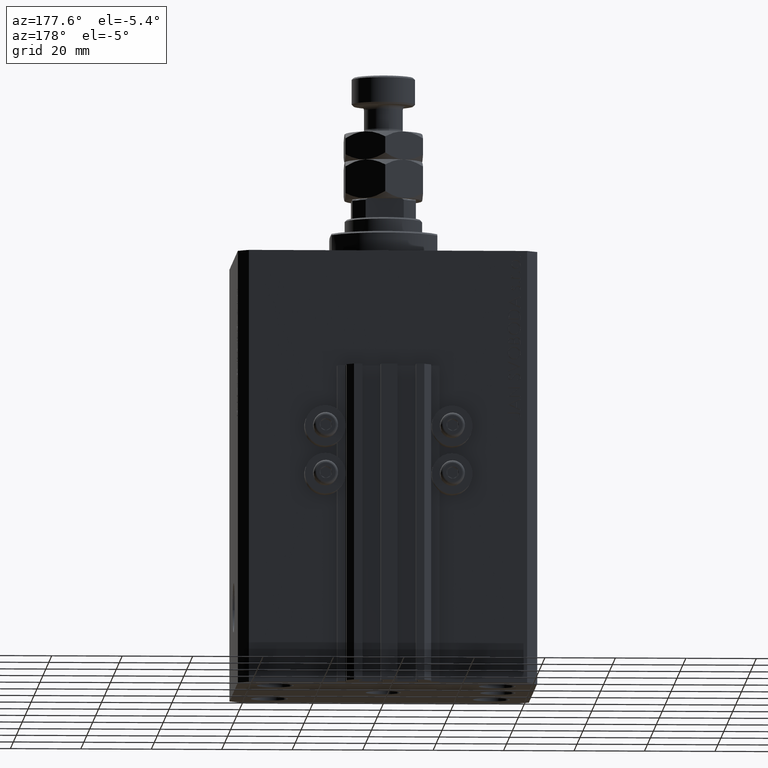
[diagram: clean part render]
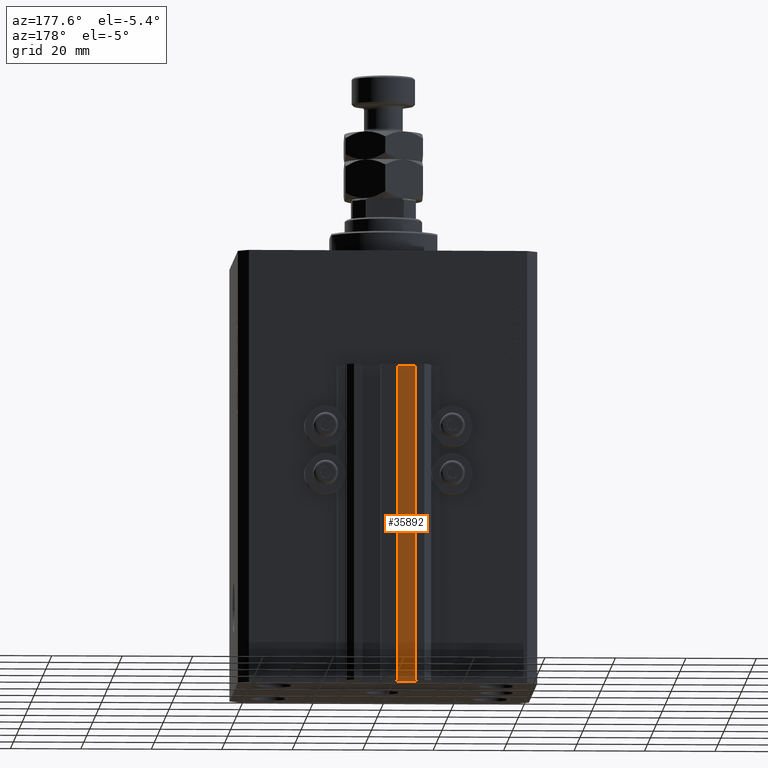
[diagram: same view with one face highlighted and labeled with its STEP entity id]
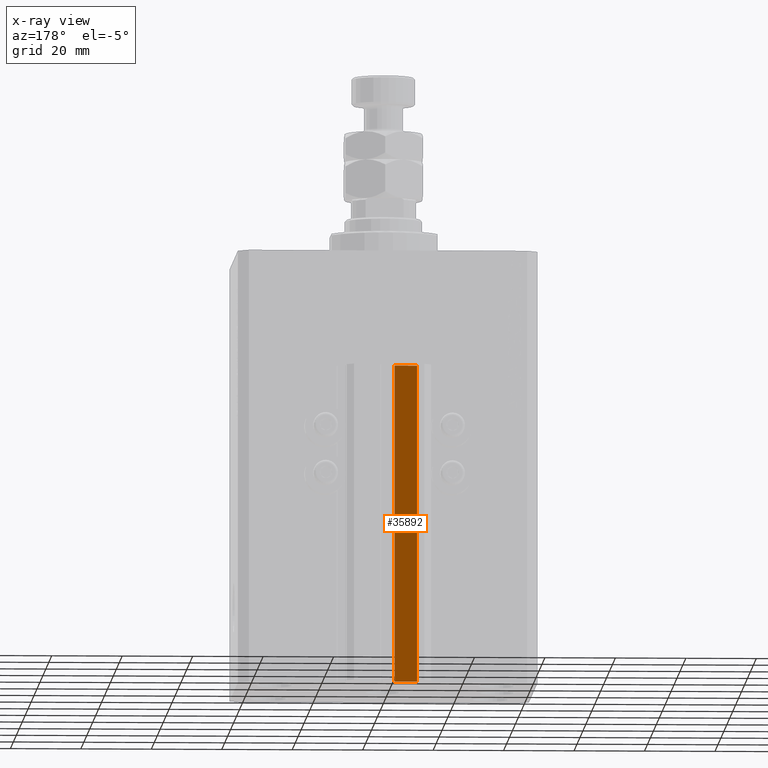
[diagram: x-ray of the same camera — body ghosted, the highlighted face saturated]
A machine part, auxiliary view. The second image highlights one B-rep face of the part: STEP entity #35892.
The next image is the same camera in x-ray: the body ghosted, the highlighted face saturated — about 0% of this face is hidden behind the body in this view.
In plain terms, the highlighted planar face has unit normal (0, 1, 0).
Its self-contained STEP definition (entity closure, byte-faithful):
#1393 = CARTESIAN_POINT ( 'NONE',  ( -1.800000000000000933, 33.50000000000000000, -123.0000000000000000 ) ) ;
#2302 = CARTESIAN_POINT ( 'NONE',  ( -1.800000000000000933, 33.50000000000000000, -123.0000000000000000 ) ) ;
#2869 = VECTOR ( 'NONE', #28306, 1000.000000000000000 ) ;
#4892 = EDGE_LOOP ( 'NONE', ( #37232, #8003, #39057, #35706 ) ) ;
#4916 = VERTEX_POINT ( 'NONE', #2302 ) ;
#5078 = CARTESIAN_POINT ( 'NONE',  ( -1.800000000000000933, 33.50000000000000000, -123.0000000000000000 ) ) ;
#6848 = CARTESIAN_POINT ( 'NONE',  ( -1.800000000000000933, 33.50000000000000000, -33.00000000000000000 ) ) ;
#8003 = ORIENTED_EDGE ( 'NONE', *, *, #8058, .F. ) ;
#8058 = EDGE_CURVE ( 'NONE', #4916, #34260, #8329, .T. ) ;
#8329 = LINE ( 'NONE', #1393, #25769 ) ;
#9829 = CARTESIAN_POINT ( 'NONE',  ( -1.800000000000000933, 33.50000000000000000, -123.0000000000000000 ) ) ;
#12112 = CARTESIAN_POINT ( 'NONE',  ( -1.800000000000000933, 33.50000000000000000, -33.00000000000000000 ) ) ;
#14875 = CARTESIAN_POINT ( 'NONE',  ( -8.199999999999997513, 33.50000000000000000, -33.00000000000000000 ) ) ;
#15521 = DIRECTION ( 'NONE',  ( 0.000000000000000000, 0.000000000000000000, 1.000000000000000000 ) ) ;
#15672 = EDGE_CURVE ( 'NONE', #31134, #22677, #24341, .T. ) ;
#16222 = EDGE_CURVE ( 'NONE', #34260, #22677, #25674, .T. ) ;
#17431 = CARTESIAN_POINT ( 'NONE',  ( -8.199999999999997513, 33.50000000000000000, -123.0000000000000000 ) ) ;
#19484 = VECTOR ( 'NONE', #21956, 1000.000000000000000 ) ;
#21127 = CARTESIAN_POINT ( 'NONE',  ( -8.199999999999997513, 33.50000000000000000, -123.0000000000000000 ) ) ;
#21956 = DIRECTION ( 'NONE',  ( -1.000000000000000000, 0.000000000000000000, 0.000000000000000000 ) ) ;
#22677 = VERTEX_POINT ( 'NONE', #14875 ) ;
#24341 = LINE ( 'NONE', #21127, #2869 ) ;
#25674 = LINE ( 'NONE', #6848, #19484 ) ;
#25769 = VECTOR ( 'NONE', #15521, 1000.000000000000000 ) ;
#27136 = FACE_OUTER_BOUND ( 'NONE', #4892, .T. ) ;
#28306 = DIRECTION ( 'NONE',  ( 0.000000000000000000, 0.000000000000000000, 1.000000000000000000 ) ) ;
#30854 = DIRECTION ( 'NONE',  ( 0.000000000000000000, 1.000000000000000000, -0.000000000000000000 ) ) ;
#30966 = AXIS2_PLACEMENT_3D ( 'NONE', #5078, #30854, #46686 ) ;
#31134 = VERTEX_POINT ( 'NONE', #17431 ) ;
#34260 = VERTEX_POINT ( 'NONE', #12112 ) ;
#35575 = EDGE_CURVE ( 'NONE', #4916, #31134, #43539, .T. ) ;
#35706 = ORIENTED_EDGE ( 'NONE', *, *, #15672, .T. ) ;
#35892 = ADVANCED_FACE ( 'NONE', ( #27136 ), #39028, .T. ) ;
#37232 = ORIENTED_EDGE ( 'NONE', *, *, #16222, .F. ) ;
#37303 = VECTOR ( 'NONE', #44258, 1000.000000000000000 ) ;
#39028 = PLANE ( 'NONE',  #30966 ) ;
#39057 = ORIENTED_EDGE ( 'NONE', *, *, #35575, .T. ) ;
#43539 = LINE ( 'NONE', #9829, #37303 ) ;
#44258 = DIRECTION ( 'NONE',  ( -1.000000000000000000, 0.000000000000000000, 0.000000000000000000 ) ) ;
#46686 = DIRECTION ( 'NONE',  ( 0.000000000000000000, 0.000000000000000000, 1.000000000000000000 ) ) ;